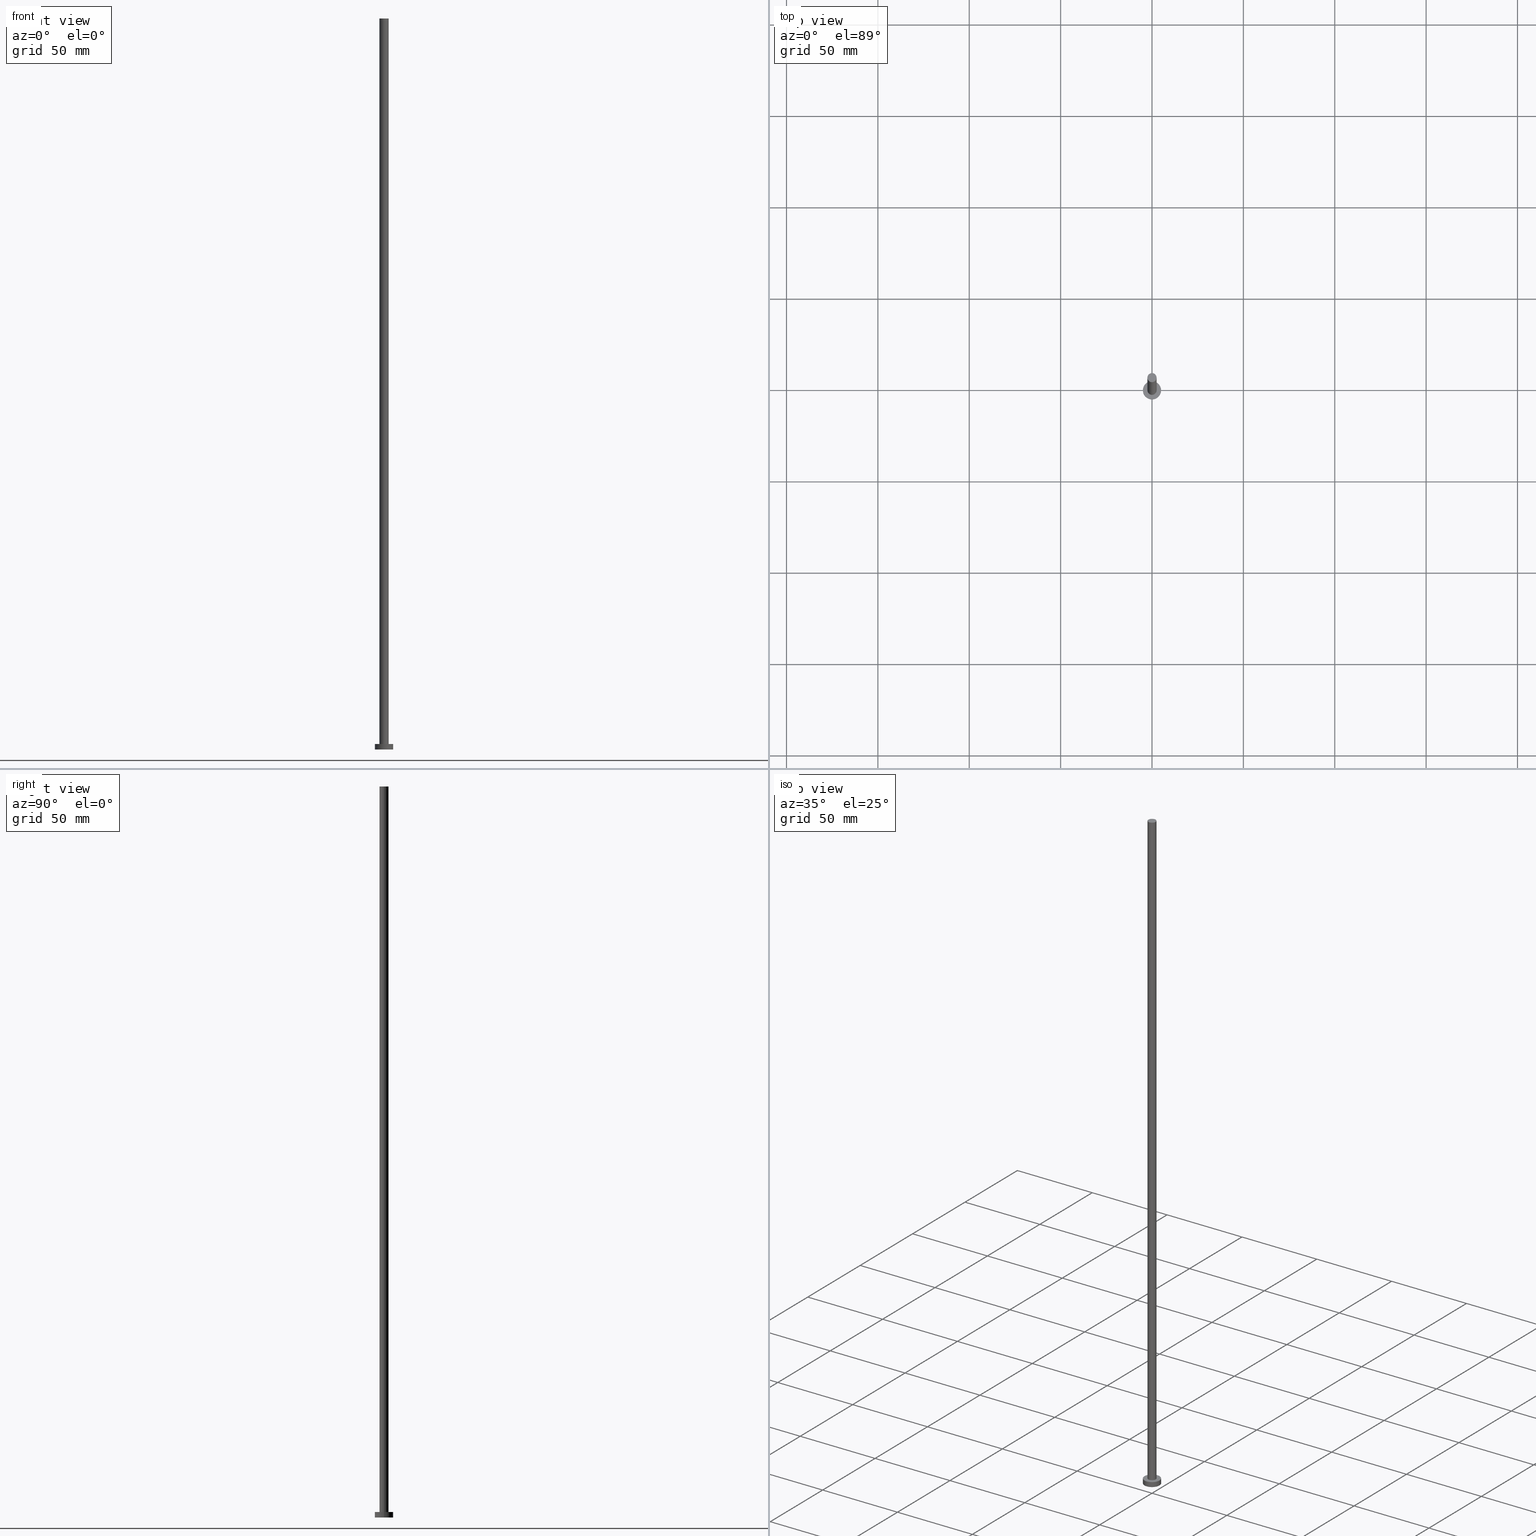
[diagram: canonical four-view strip — front | top / right | iso, engineering-drawing reading convention]
A machine part, canonical four-view strip (front | top / right | iso — engineering-drawing reading convention). The complete STEP part file that produces these views, byte-faithful:
ISO-10303-21;
HEADER;
FILE_DESCRIPTION (( 'STEP AP203' ),
    '1' );
FILE_NAME ('d132.STEP',
    '2023-02-12T12:29:35',
    ( '' ),
    ( '' ),
    'SwSTEP 2.0',
    'SolidWorks 2019',
    '' );
FILE_SCHEMA (( 'CONFIG_CONTROL_DESIGN' ));
ENDSEC;

DATA;
#1 = PERSON_AND_ORGANIZATION ( #8, #133 ) ;
#2 = CYLINDRICAL_SURFACE ( 'NONE', #215, 5.000000000000000000 ) ;
#3 = SHAPE_DEFINITION_REPRESENTATION ( #205, #115 ) ;
#4 = EDGE_LOOP ( 'NONE', ( #79, #186, #81, #50 ) ) ;
#5 = CYLINDRICAL_SURFACE ( 'NONE', #163, 2.500000000000000000 ) ;
#6 = DIRECTION ( 'NONE',  ( 1.000000000000000000, 0.000000000000000000, 0.000000000000000000 ) ) ;
#7 = CLOSED_SHELL ( 'NONE', ( #177, #146, #97, #182, #61, #38, #71 ) ) ;
#8 = PERSON ( 'NEUR�EN�', 'NEUR�EN�', 'NEUR�EN�', ('NEUR�EN�'), ('NEUR�EN�'), ('NEUR�EN�') ) ;
#9 = EDGE_LOOP ( 'NONE', ( #31, #101, #11, #219 ) ) ;
#10 = DIRECTION ( 'NONE',  ( 0.000000000000000000, 0.000000000000000000, 1.000000000000000000 ) ) ;
#11 = ORIENTED_EDGE ( 'NONE', *, *, #19, .T. ) ;
#12 = CARTESIAN_POINT ( 'NONE',  ( 2.500000000000000000, 3.061616997868383141E-16, 400.0000000000000000 ) ) ;
#13 = EDGE_CURVE ( 'NONE', #171, #76, #196, .T. ) ;
#14 = EDGE_LOOP ( 'NONE', ( #56, #231 ) ) ;
#15 = CC_DESIGN_DATE_AND_TIME_ASSIGNMENT ( #174, #254, ( #36 ) ) ;
#16 = DIRECTION ( 'NONE',  ( 1.000000000000000000, 0.000000000000000000, 0.000000000000000000 ) ) ;
#17 = CALENDAR_DATE ( 2023, 12, 2 ) ;
#18 = COORDINATED_UNIVERSAL_TIME_OFFSET ( 1, 0, .AHEAD. ) ;
#19 = EDGE_CURVE ( 'NONE', #93, #126, #141, .T. ) ;
#20 = PERSON_AND_ORGANIZATION_ROLE ( 'creator' ) ;
#21 = CARTESIAN_POINT ( 'NONE',  ( 5.000000000000000000, 6.123233995736766282E-16, 0.000000000000000000 ) ) ;
#22 = CC_DESIGN_APPROVAL ( #243, ( #36 ) ) ;
#23 = DIRECTION ( 'NONE',  ( 1.000000000000000000, 0.000000000000000000, 0.000000000000000000 ) ) ;
#24 = CC_DESIGN_PERSON_AND_ORGANIZATION_ASSIGNMENT ( #1, #20, ( #120 ) ) ;
#25 = LINE ( 'NONE', #45, #145 ) ;
#26 = DIRECTION ( 'NONE',  ( -0.000000000000000000, -0.000000000000000000, -1.000000000000000000 ) ) ;
#27 = AXIS2_PLACEMENT_3D ( 'NONE', #225, #123, #156 ) ;
#28 = CC_DESIGN_APPROVAL ( #235, ( #106 ) ) ;
#29 = VECTOR ( 'NONE', #166, 1000.000000000000000 ) ;
#30 = DIRECTION ( 'NONE',  ( 1.000000000000000000, 0.000000000000000000, 0.000000000000000000 ) ) ;
#31 = ORIENTED_EDGE ( 'NONE', *, *, #162, .F. ) ;
#32 = LOCAL_TIME ( 13, 29, 35.00000000000000000, #89 ) ;
#33 = AXIS2_PLACEMENT_3D ( 'NONE', #92, #198, #194 ) ;
#34 = EDGE_LOOP ( 'NONE', ( #185, #53, #224, #230 ) ) ;
#35 = CARTESIAN_POINT ( 'NONE',  ( 0.000000000000000000, 0.000000000000000000, 3.000000000000000000 ) ) ;
#36 = PRODUCT_DEFINITION ( 'NEZN�M�', '', #120, #113 ) ;
#37 = PERSON_AND_ORGANIZATION_ROLE ( 'creator' ) ;
#38 = ADVANCED_FACE ( 'NONE', ( #132 ), #207, .T. ) ;
#39 = DATE_AND_TIME ( #211, #84 ) ;
#40 = APPLICATION_CONTEXT ( 'configuration controlled 3d designs of mechanical parts and assemblies' ) ;
#41 = COORDINATED_UNIVERSAL_TIME_OFFSET ( 1, 0, .AHEAD. ) ;
#42 = DATE_AND_TIME ( #238, #99 ) ;
#43 = CARTESIAN_POINT ( 'NONE',  ( 0.000000000000000000, 0.000000000000000000, 3.000000000000000000 ) ) ;
#44 = PERSON_AND_ORGANIZATION_ROLE ( 'design_supplier' ) ;
#45 = CARTESIAN_POINT ( 'NONE',  ( -2.500000000000000000, 0.000000000000000000, 400.0000000000000000 ) ) ;
#46 = APPROVAL_PERSON_ORGANIZATION ( #114, #78, #150 ) ;
#47 = CC_DESIGN_PERSON_AND_ORGANIZATION_ASSIGNMENT ( #216, #37, ( #36 ) ) ;
#48 = ORIENTED_EDGE ( 'NONE', *, *, #191, .F. ) ;
#49 = FACE_OUTER_BOUND ( 'NONE', #9, .T. ) ;
#50 = ORIENTED_EDGE ( 'NONE', *, *, #13, .T. ) ;
#51 = FACE_OUTER_BOUND ( 'NONE', #34, .T. ) ;
#52 = CARTESIAN_POINT ( 'NONE',  ( -5.000000000000000000, 0.000000000000000000, 3.000000000000000000 ) ) ;
#53 = ORIENTED_EDGE ( 'NONE', *, *, #149, .T. ) ;
#54 = EDGE_LOOP ( 'NONE', ( #233, #48, #143, #172 ) ) ;
#55 = AXIS2_PLACEMENT_3D ( 'NONE', #124, #202, #30 ) ;
#56 = ORIENTED_EDGE ( 'NONE', *, *, #13, .F. ) ;
#57 = DIRECTION ( 'NONE',  ( 1.000000000000000000, 0.000000000000000000, 0.000000000000000000 ) ) ;
#58 = DIRECTION ( 'NONE',  ( 0.000000000000000000, 0.000000000000000000, 1.000000000000000000 ) ) ;
#59 = AXIS2_PLACEMENT_3D ( 'NONE', #148, #10, #170 ) ;
#60 = DATE_AND_TIME ( #152, #227 ) ;
#61 = ADVANCED_FACE ( 'NONE', ( #189 ), #90, .F. ) ;
#62 = APPROVAL_ROLE ( '' ) ;
#63 = AXIS2_PLACEMENT_3D ( 'NONE', #121, #158, #239 ) ;
#64 = DATE_AND_TIME ( #236, #32 ) ;
#65 = DIRECTION ( 'NONE',  ( 1.000000000000000000, 0.000000000000000000, -0.000000000000000000 ) ) ;
#66 = FACE_OUTER_BOUND ( 'NONE', #169, .T. ) ;
#67 = EDGE_CURVE ( 'NONE', #75, #108, #246, .T. ) ;
#68 = CARTESIAN_POINT ( 'NONE',  ( 0.000000000000000000, 0.000000000000000000, 0.000000000000000000 ) ) ;
#69 = APPROVAL_PERSON_ORGANIZATION ( #85, #235, #155 ) ;
#70 = FACE_BOUND ( 'NONE', #127, .T. ) ;
#71 = ADVANCED_FACE ( 'NONE', ( #66 ), #242, .T. ) ;
#72 = DIRECTION ( 'NONE',  ( 0.000000000000000000, 0.000000000000000000, 1.000000000000000000 ) ) ;
#73 = CIRCLE ( 'NONE', #55, 2.500000000000000000 ) ;
#74 = CC_DESIGN_SECURITY_CLASSIFICATION ( #106, ( #120 ) ) ;
#75 = VERTEX_POINT ( 'NONE', #119 ) ;
#76 = VERTEX_POINT ( 'NONE', #21 ) ;
#77 = CARTESIAN_POINT ( 'NONE',  ( 0.000000000000000000, 0.000000000000000000, 0.000000000000000000 ) ) ;
#78 = APPROVAL ( #95, 'NEUR�EN�' ) ;
#79 = ORIENTED_EDGE ( 'NONE', *, *, #149, .F. ) ;
#80 = CIRCLE ( 'NONE', #33, 2.500000000000000000 ) ;
#81 = ORIENTED_EDGE ( 'NONE', *, *, #159, .T. ) ;
#82 = CARTESIAN_POINT ( 'NONE',  ( -2.500000000000000000, 0.000000000000000000, 400.0000000000000000 ) ) ;
#83 = CC_DESIGN_DATE_AND_TIME_ASSIGNMENT ( #64, #157, ( #106 ) ) ;
#84 = LOCAL_TIME ( 13, 29, 35.00000000000000000, #234 ) ;
#85 = PERSON_AND_ORGANIZATION ( #8, #133 ) ;
#86 = PLANE ( 'NONE',  #27 ) ;
#87 = EDGE_CURVE ( 'NONE', #126, #93, #80, .T. ) ;
#88 = CYLINDRICAL_SURFACE ( 'NONE', #63, 5.000000000000000000 ) ;
#89 = COORDINATED_UNIVERSAL_TIME_OFFSET ( 1, 0, .AHEAD. ) ;
#90 = PLANE ( 'NONE',  #154 ) ;
#91 = CARTESIAN_POINT ( 'NONE',  ( 0.000000000000000000, 0.000000000000000000, 400.0000000000000000 ) ) ;
#92 = CARTESIAN_POINT ( 'NONE',  ( 0.000000000000000000, 0.000000000000000000, 3.000000000000000000 ) ) ;
#93 = VERTEX_POINT ( 'NONE', #179 ) ;
#94 = ORIENTED_EDGE ( 'NONE', *, *, #87, .F. ) ;
#95 = APPROVAL_STATUS ( 'not_yet_approved' ) ;
#96 = APPROVAL_STATUS ( 'not_yet_approved' ) ;
#97 = ADVANCED_FACE ( 'NONE', ( #122 ), #2, .T. ) ;
#98 = AXIS2_PLACEMENT_3D ( 'NONE', #237, #144, #253 ) ;
#99 = LOCAL_TIME ( 13, 29, 35.00000000000000000, #217 ) ;
#100 = CARTESIAN_POINT ( 'NONE',  ( -2.500000000000000000, 0.000000000000000000, 3.000000000000000000 ) ) ;
#101 = ORIENTED_EDGE ( 'NONE', *, *, #151, .T. ) ;
#102 = CARTESIAN_POINT ( 'NONE',  ( -5.000000000000000000, 0.000000000000000000, 0.000000000000000000 ) ) ;
#103 = AXIS2_PLACEMENT_3D ( 'NONE', #68, #138, #23 ) ;
#104 = DIRECTION ( 'NONE',  ( -0.000000000000000000, -0.000000000000000000, -1.000000000000000000 ) ) ;
#105 = EDGE_LOOP ( 'NONE', ( #206, #252 ) ) ;
#106 = SECURITY_CLASSIFICATION ( '', '', #118 ) ;
#107 = AXIS2_PLACEMENT_3D ( 'NONE', #200, #223, #226 ) ;
#108 = VERTEX_POINT ( 'NONE', #181 ) ;
#109 = DIRECTION ( 'NONE',  ( 0.000000000000000000, 0.000000000000000000, 1.000000000000000000 ) ) ;
#110 = EDGE_CURVE ( 'NONE', #204, #126, #25, .T. ) ;
#111 = DIRECTION ( 'NONE',  ( -1.000000000000000000, 0.000000000000000000, 0.000000000000000000 ) ) ;
#112 =( LENGTH_UNIT ( ) NAMED_UNIT ( * ) SI_UNIT ( .MILLI., .METRE. ) );
#113 = DESIGN_CONTEXT ( 'detailed design', #187, 'design' ) ;
#114 = PERSON_AND_ORGANIZATION ( #8, #133 ) ;
#115 = ADVANCED_BREP_SHAPE_REPRESENTATION ( 'd132', ( #210, #251 ), #128 ) ;
#116 = APPROVAL_DATE_TIME ( #39, #78 ) ;
#117 = PERSON_AND_ORGANIZATION ( #8, #133 ) ;
#118 = SECURITY_CLASSIFICATION_LEVEL ( 'unclassified' ) ;
#119 = CARTESIAN_POINT ( 'NONE',  ( 5.000000000000000000, 6.123233995736766282E-16, 3.000000000000000000 ) ) ;
#120 = PRODUCT_DEFINITION_FORMATION_WITH_SPECIFIED_SOURCE ( 'LIBOVOLN�', '', #255, .NOT_KNOWN. ) ;
#121 = CARTESIAN_POINT ( 'NONE',  ( 0.000000000000000000, 0.000000000000000000, 3.000000000000000000 ) ) ;
#122 = FACE_OUTER_BOUND ( 'NONE', #4, .T. ) ;
#123 = DIRECTION ( 'NONE',  ( 0.000000000000000000, 0.000000000000000000, 1.000000000000000000 ) ) ;
#124 = CARTESIAN_POINT ( 'NONE',  ( 0.000000000000000000, 0.000000000000000000, 400.0000000000000000 ) ) ;
#125 = AXIS2_PLACEMENT_3D ( 'NONE', #43, #72, #6 ) ;
#126 = VERTEX_POINT ( 'NONE', #100 ) ;
#127 = EDGE_LOOP ( 'NONE', ( #94, #199 ) ) ;
#128 =( GEOMETRIC_REPRESENTATION_CONTEXT ( 3 ) GLOBAL_UNCERTAINTY_ASSIGNED_CONTEXT ( ( #249 ) ) GLOBAL_UNIT_ASSIGNED_CONTEXT ( ( #112, #142, #184 ) ) REPRESENTATION_CONTEXT ( 'NONE', 'WORKASPACE' ) );
#129 = AXIS2_PLACEMENT_3D ( 'NONE', #35, #109, #16 ) ;
#130 = CARTESIAN_POINT ( 'NONE',  ( 0.000000000000000000, 0.000000000000000000, 0.000000000000000000 ) ) ;
#131 = MECHANICAL_CONTEXT ( 'NONE', #40, 'mechanical' ) ;
#132 = FACE_OUTER_BOUND ( 'NONE', #54, .T. ) ;
#133 = ORGANIZATION ( 'NEUR�EN�', 'NEUR�EN�', '' ) ;
#134 = APPROVAL_DATE_TIME ( #60, #243 ) ;
#135 = PERSON_AND_ORGANIZATION_ROLE ( 'classification_officer' ) ;
#136 = LINE ( 'NONE', #244, #29 ) ;
#137 = CARTESIAN_POINT ( 'NONE',  ( 0.000000000000000000, 0.000000000000000000, 0.000000000000000000 ) ) ;
#138 = DIRECTION ( 'NONE',  ( 0.000000000000000000, 0.000000000000000000, 1.000000000000000000 ) ) ;
#139 = FACE_OUTER_BOUND ( 'NONE', #105, .T. ) ;
#140 = CARTESIAN_POINT ( 'NONE',  ( 2.500000000000000000, 3.061616997868383141E-16, 400.0000000000000000 ) ) ;
#141 = CIRCLE ( 'NONE', #129, 2.500000000000000000 ) ;
#142 =( NAMED_UNIT ( * ) PLANE_ANGLE_UNIT ( ) SI_UNIT ( $, .RADIAN. ) );
#143 = ORIENTED_EDGE ( 'NONE', *, *, #110, .T. ) ;
#144 = DIRECTION ( 'NONE',  ( 0.000000000000000000, 0.000000000000000000, 1.000000000000000000 ) ) ;
#145 = VECTOR ( 'NONE', #165, 1000.000000000000000 ) ;
#146 = ADVANCED_FACE ( 'NONE', ( #51 ), #88, .T. ) ;
#147 = ORIENTED_EDGE ( 'NONE', *, *, #191, .T. ) ;
#148 = CARTESIAN_POINT ( 'NONE',  ( 0.000000000000000000, 0.000000000000000000, 3.000000000000000000 ) ) ;
#149 = EDGE_CURVE ( 'NONE', #75, #76, #136, .T. ) ;
#150 = APPROVAL_ROLE ( '' ) ;
#151 = EDGE_CURVE ( 'NONE', #248, #93, #180, .T. ) ;
#152 = CALENDAR_DATE ( 2023, 12, 2 ) ;
#153 = VECTOR ( 'NONE', #197, 1000.000000000000000 ) ;
#154 = AXIS2_PLACEMENT_3D ( 'NONE', #137, #178, #65 ) ;
#155 = APPROVAL_ROLE ( '' ) ;
#156 = DIRECTION ( 'NONE',  ( 1.000000000000000000, 0.000000000000000000, -0.000000000000000000 ) ) ;
#157 = DATE_TIME_ROLE ( 'classification_date' ) ;
#158 = DIRECTION ( 'NONE',  ( -0.000000000000000000, -0.000000000000000000, -1.000000000000000000 ) ) ;
#159 = EDGE_CURVE ( 'NONE', #108, #171, #241, .T. ) ;
#160 = APPROVAL_STATUS ( 'not_yet_approved' ) ;
#161 = CARTESIAN_POINT ( 'NONE',  ( 0.000000000000000000, 0.000000000000000000, 3.000000000000000000 ) ) ;
#162 = EDGE_CURVE ( 'NONE', #248, #204, #73, .T. ) ;
#163 = AXIS2_PLACEMENT_3D ( 'NONE', #91, #104, #183 ) ;
#164 = AXIS2_PLACEMENT_3D ( 'NONE', #188, #228, #111 ) ;
#165 = DIRECTION ( 'NONE',  ( -0.000000000000000000, -0.000000000000000000, -1.000000000000000000 ) ) ;
#166 = DIRECTION ( 'NONE',  ( -0.000000000000000000, -0.000000000000000000, -1.000000000000000000 ) ) ;
#167 = EDGE_CURVE ( 'NONE', #76, #171, #214, .T. ) ;
#168 = APPLICATION_PROTOCOL_DEFINITION ( 'international standard', 'config_control_design', 1994, #40 ) ;
#169 = EDGE_LOOP ( 'NONE', ( #147, #203 ) ) ;
#170 = DIRECTION ( 'NONE',  ( 1.000000000000000000, 0.000000000000000000, 0.000000000000000000 ) ) ;
#171 = VERTEX_POINT ( 'NONE', #102 ) ;
#172 = ORIENTED_EDGE ( 'NONE', *, *, #87, .T. ) ;
#173 = CIRCLE ( 'NONE', #59, 5.000000000000000000 ) ;
#174 = DATE_AND_TIME ( #17, #195 ) ;
#175 = PRODUCT_RELATED_PRODUCT_CATEGORY ( 'detail', '', ( #255 ) ) ;
#176 = PERSON_AND_ORGANIZATION ( #8, #133 ) ;
#177 = ADVANCED_FACE ( 'NONE', ( #49 ), #5, .T. ) ;
#178 = DIRECTION ( 'NONE',  ( 0.000000000000000000, 0.000000000000000000, 1.000000000000000000 ) ) ;
#179 = CARTESIAN_POINT ( 'NONE',  ( 2.500000000000000000, 3.061616997868383141E-16, 3.000000000000000000 ) ) ;
#180 = LINE ( 'NONE', #140, #201 ) ;
#181 = CARTESIAN_POINT ( 'NONE',  ( -5.000000000000000000, 0.000000000000000000, 3.000000000000000000 ) ) ;
#182 = ADVANCED_FACE ( 'NONE', ( #70, #139 ), #86, .T. ) ;
#183 = DIRECTION ( 'NONE',  ( -1.000000000000000000, 0.000000000000000000, 0.000000000000000000 ) ) ;
#184 =( NAMED_UNIT ( * ) SI_UNIT ( $, .STERADIAN. ) SOLID_ANGLE_UNIT ( ) );
#185 = ORIENTED_EDGE ( 'NONE', *, *, #67, .F. ) ;
#186 = ORIENTED_EDGE ( 'NONE', *, *, #229, .F. ) ;
#187 = APPLICATION_CONTEXT ( 'configuration controlled 3d designs of mechanical parts and assemblies' ) ;
#188 = CARTESIAN_POINT ( 'NONE',  ( 0.000000000000000000, 0.000000000000000000, 400.0000000000000000 ) ) ;
#189 = FACE_OUTER_BOUND ( 'NONE', #14, .T. ) ;
#190 = PERSON_AND_ORGANIZATION ( #8, #133 ) ;
#191 = EDGE_CURVE ( 'NONE', #204, #248, #209, .T. ) ;
#192 = PERSON_AND_ORGANIZATION ( #8, #133 ) ;
#193 = APPROVAL_DATE_TIME ( #42, #235 ) ;
#194 = DIRECTION ( 'NONE',  ( 1.000000000000000000, 0.000000000000000000, 0.000000000000000000 ) ) ;
#195 = LOCAL_TIME ( 13, 29, 35.00000000000000000, #41 ) ;
#196 = CIRCLE ( 'NONE', #222, 5.000000000000000000 ) ;
#197 = DIRECTION ( 'NONE',  ( -0.000000000000000000, -0.000000000000000000, -1.000000000000000000 ) ) ;
#198 = DIRECTION ( 'NONE',  ( 0.000000000000000000, 0.000000000000000000, 1.000000000000000000 ) ) ;
#199 = ORIENTED_EDGE ( 'NONE', *, *, #19, .F. ) ;
#200 = CARTESIAN_POINT ( 'NONE',  ( 0.000000000000000000, 0.000000000000000000, 400.0000000000000000 ) ) ;
#201 = VECTOR ( 'NONE', #26, 1000.000000000000000 ) ;
#202 = DIRECTION ( 'NONE',  ( 0.000000000000000000, 0.000000000000000000, 1.000000000000000000 ) ) ;
#203 = ORIENTED_EDGE ( 'NONE', *, *, #162, .T. ) ;
#204 = VERTEX_POINT ( 'NONE', #82 ) ;
#205 = PRODUCT_DEFINITION_SHAPE ( 'NONE', 'NONE',  #36 ) ;
#206 = ORIENTED_EDGE ( 'NONE', *, *, #229, .T. ) ;
#207 = CYLINDRICAL_SURFACE ( 'NONE', #164, 2.500000000000000000 ) ;
#208 = APPLICATION_PROTOCOL_DEFINITION ( 'international standard', 'config_control_design', 1994, #187 ) ;
#209 = CIRCLE ( 'NONE', #98, 2.500000000000000000 ) ;
#210 = MANIFOLD_SOLID_BREP ( 'P�idat vysunut�m3', #7 ) ;
#211 = CALENDAR_DATE ( 2023, 12, 2 ) ;
#212 = PERSON_AND_ORGANIZATION_ROLE ( 'design_owner' ) ;
#213 = CC_DESIGN_PERSON_AND_ORGANIZATION_ASSIGNMENT ( #190, #212, ( #255 ) ) ;
#214 = CIRCLE ( 'NONE', #103, 5.000000000000000000 ) ;
#215 = AXIS2_PLACEMENT_3D ( 'NONE', #161, #218, #220 ) ;
#216 = PERSON_AND_ORGANIZATION ( #8, #133 ) ;
#217 = COORDINATED_UNIVERSAL_TIME_OFFSET ( 1, 0, .AHEAD. ) ;
#218 = DIRECTION ( 'NONE',  ( -0.000000000000000000, -0.000000000000000000, -1.000000000000000000 ) ) ;
#219 = ORIENTED_EDGE ( 'NONE', *, *, #110, .F. ) ;
#220 = DIRECTION ( 'NONE',  ( -1.000000000000000000, 0.000000000000000000, 0.000000000000000000 ) ) ;
#221 = CC_DESIGN_APPROVAL ( #78, ( #120 ) ) ;
#222 = AXIS2_PLACEMENT_3D ( 'NONE', #130, #58, #247 ) ;
#223 = DIRECTION ( 'NONE',  ( 0.000000000000000000, 0.000000000000000000, 1.000000000000000000 ) ) ;
#224 = ORIENTED_EDGE ( 'NONE', *, *, #167, .T. ) ;
#225 = CARTESIAN_POINT ( 'NONE',  ( 0.000000000000000000, 0.000000000000000000, 3.000000000000000000 ) ) ;
#226 = DIRECTION ( 'NONE',  ( 1.000000000000000000, 0.000000000000000000, -0.000000000000000000 ) ) ;
#227 = LOCAL_TIME ( 13, 29, 35.00000000000000000, #18 ) ;
#228 = DIRECTION ( 'NONE',  ( -0.000000000000000000, -0.000000000000000000, -1.000000000000000000 ) ) ;
#229 = EDGE_CURVE ( 'NONE', #108, #75, #173, .T. ) ;
#230 = ORIENTED_EDGE ( 'NONE', *, *, #159, .F. ) ;
#231 = ORIENTED_EDGE ( 'NONE', *, *, #167, .F. ) ;
#232 = DIRECTION ( 'NONE',  ( 0.000000000000000000, 0.000000000000000000, 1.000000000000000000 ) ) ;
#233 = ORIENTED_EDGE ( 'NONE', *, *, #151, .F. ) ;
#234 = COORDINATED_UNIVERSAL_TIME_OFFSET ( 1, 0, .AHEAD. ) ;
#235 = APPROVAL ( #160, 'NEUR�EN�' ) ;
#236 = CALENDAR_DATE ( 2023, 12, 2 ) ;
#237 = CARTESIAN_POINT ( 'NONE',  ( 0.000000000000000000, 0.000000000000000000, 400.0000000000000000 ) ) ;
#238 = CALENDAR_DATE ( 2023, 12, 2 ) ;
#239 = DIRECTION ( 'NONE',  ( -1.000000000000000000, 0.000000000000000000, 0.000000000000000000 ) ) ;
#240 = CC_DESIGN_PERSON_AND_ORGANIZATION_ASSIGNMENT ( #176, #44, ( #120 ) ) ;
#241 = LINE ( 'NONE', #52, #153 ) ;
#242 = PLANE ( 'NONE',  #107 ) ;
#243 = APPROVAL ( #96, 'NEUR�EN�' ) ;
#244 = CARTESIAN_POINT ( 'NONE',  ( 5.000000000000000000, 6.123233995736766282E-16, 3.000000000000000000 ) ) ;
#245 = APPROVAL_PERSON_ORGANIZATION ( #117, #243, #62 ) ;
#246 = CIRCLE ( 'NONE', #125, 5.000000000000000000 ) ;
#247 = DIRECTION ( 'NONE',  ( 1.000000000000000000, 0.000000000000000000, 0.000000000000000000 ) ) ;
#248 = VERTEX_POINT ( 'NONE', #12 ) ;
#249 = UNCERTAINTY_MEASURE_WITH_UNIT (LENGTH_MEASURE( 1.000000000000000082E-05 ), #112, 'distance_accuracy_value', 'NONE');
#250 = CC_DESIGN_PERSON_AND_ORGANIZATION_ASSIGNMENT ( #192, #135, ( #106 ) ) ;
#251 = AXIS2_PLACEMENT_3D ( 'NONE', #77, #232, #57 ) ;
#252 = ORIENTED_EDGE ( 'NONE', *, *, #67, .T. ) ;
#253 = DIRECTION ( 'NONE',  ( 1.000000000000000000, 0.000000000000000000, 0.000000000000000000 ) ) ;
#254 = DATE_TIME_ROLE ( 'creation_date' ) ;
#255 = PRODUCT ( 'd132', 'd132', '', ( #131 ) ) ;
ENDSEC;
END-ISO-10303-21;
